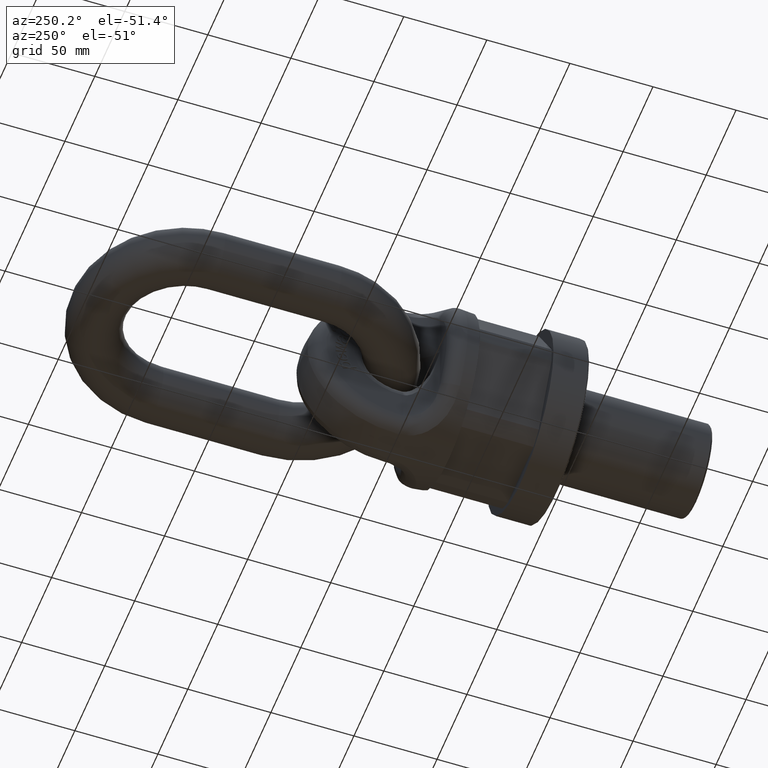
[diagram: clean part render]
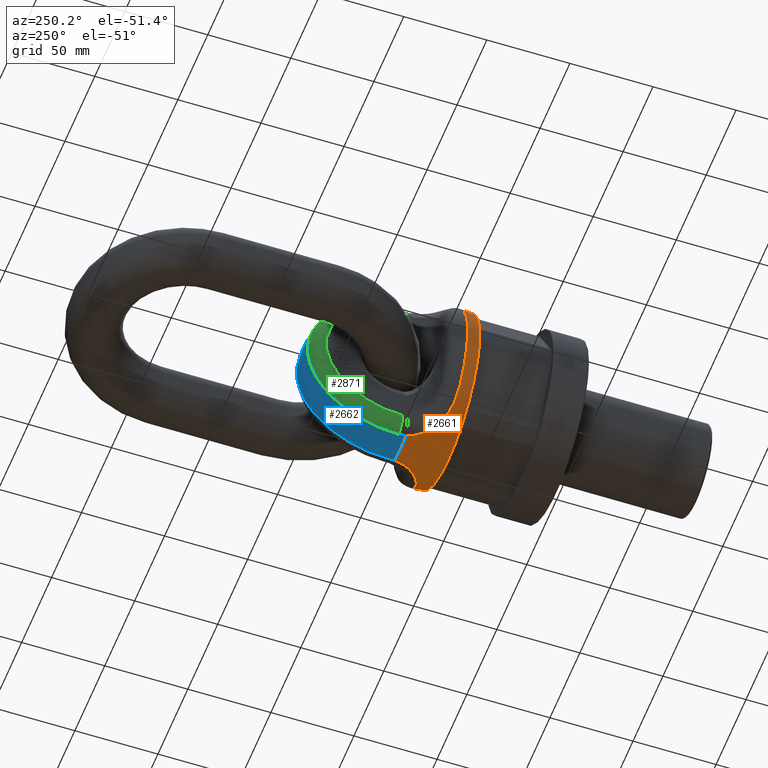
[diagram: same view with three faces highlighted in distinct colors, each labeled with its STEP entity id]
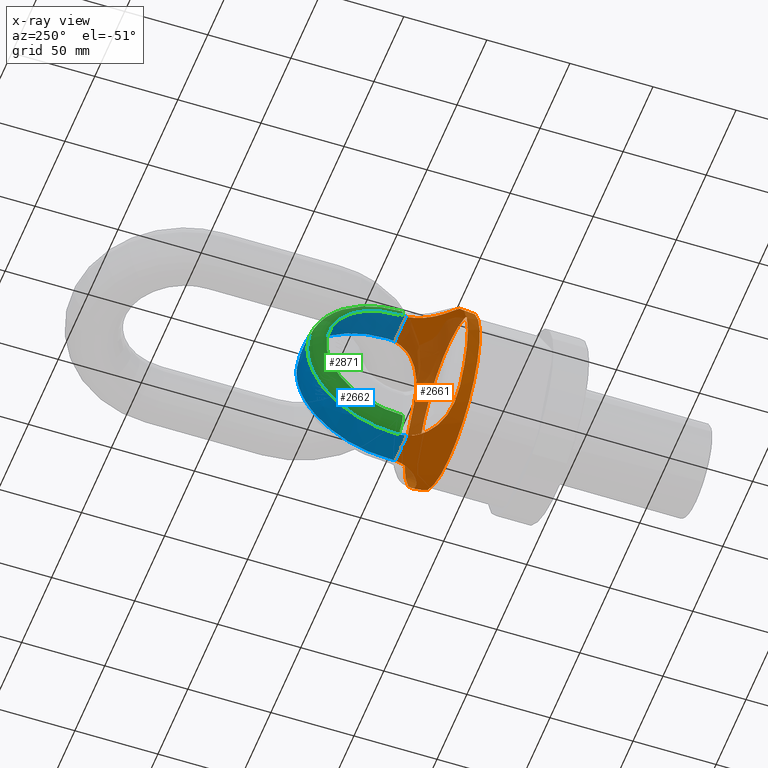
[diagram: x-ray of the same camera — body ghosted, the three highlighted faces saturated]
A machine part, auxiliary view with three faces highlighted in distinct colors.
The next image is the same camera in x-ray (body ghosted, the three faces saturated) — at least one of them is partly hidden behind the body in this view.
Their STEP definitions:

[orange] entity #2661 — the highlighted conical surface has half-angle 5.253 deg.
#349=B_SPLINE_CURVE_WITH_KNOTS('',3,(#7020,#7021,#7022,#7023,#7024,#7025,
#7026,#7027,#7028,#7029,#7030,#7031),.UNSPECIFIED.,.F.,.F.,(4,2,2,2,2,4),
(0.,0.25,0.5,0.75,0.875,1.),.UNSPECIFIED.);
#350=B_SPLINE_CURVE_WITH_KNOTS('',3,(#7036,#7037,#7038,#7039,#7040,#7041,
#7042,#7043,#7044,#7045),.UNSPECIFIED.,.F.,.F.,(4,2,2,2,4),(0.,0.25,0.5,
0.75,1.),.UNSPECIFIED.);
#351=B_SPLINE_CURVE_WITH_KNOTS('',3,(#7049,#7050,#7051,#7052,#7053,#7054,
#7055,#7056,#7057,#7058,#7059,#7060),.UNSPECIFIED.,.F.,.F.,(4,2,2,2,2,4),
(0.,0.25,0.5,0.75,0.875,1.),.UNSPECIFIED.);
#352=B_SPLINE_CURVE_WITH_KNOTS('',3,(#7064,#7065,#7066,#7067,#7068,#7069,
#7070,#7071,#7072,#7073),.UNSPECIFIED.,.F.,.F.,(4,2,2,2,4),(0.,0.25,0.5,
0.75,1.),.UNSPECIFIED.);
#1787=CONICAL_SURFACE('',#5649,52.1058617943637,5.2532915017207);
#2661=ADVANCED_FACE('',(#3008,#3009),#1787,.T.);
#3008=FACE_BOUND('',#3096,.T.);
#3009=FACE_BOUND('',#3097,.T.);
#3096=EDGE_LOOP('',(#3513));
#3097=EDGE_LOOP('',(#3514,#3515,#3516,#3517,#3518,#3519,#3520,#3521));
#3513=ORIENTED_EDGE('',*,*,#5058,.F.);
#3514=ORIENTED_EDGE('',*,*,#5059,.T.);
#3515=ORIENTED_EDGE('',*,*,#5060,.T.);
#3516=ORIENTED_EDGE('',*,*,#5061,.T.);
#3517=ORIENTED_EDGE('',*,*,#5062,.T.);
#3518=ORIENTED_EDGE('',*,*,#5063,.T.);
#3519=ORIENTED_EDGE('',*,*,#5064,.T.);
#3520=ORIENTED_EDGE('',*,*,#5065,.T.);
#3521=ORIENTED_EDGE('',*,*,#5066,.T.);
#4645=VERTEX_POINT('',#7019);
#4646=VERTEX_POINT('',#7032);
#4647=VERTEX_POINT('',#7033);
#4648=VERTEX_POINT('',#7035);
#4649=VERTEX_POINT('',#7046);
#4650=VERTEX_POINT('',#7048);
#4651=VERTEX_POINT('',#7061);
#4652=VERTEX_POINT('',#7063);
#4653=VERTEX_POINT('',#7074);
#5058=EDGE_CURVE('',#4645,#4645,#5553,.T.);
#5059=EDGE_CURVE('',#4646,#4647,#349,.T.);
#5060=EDGE_CURVE('',#4647,#4648,#5554,.T.);
#5061=EDGE_CURVE('',#4648,#4649,#350,.T.);
#5062=EDGE_CURVE('',#4649,#4650,#5555,.T.);
#5063=EDGE_CURVE('',#4650,#4651,#351,.T.);
#5064=EDGE_CURVE('',#4651,#4652,#5556,.T.);
#5065=EDGE_CURVE('',#4652,#4653,#352,.T.);
#5066=EDGE_CURVE('',#4653,#4646,#5557,.T.);
#5553=CIRCLE('',#5644,52.1058617943637);
#5554=CIRCLE('',#5645,54.7689818163599);
#5555=CIRCLE('',#5646,52.7907474358159);
#5556=CIRCLE('',#5647,54.7689818163599);
#5557=CIRCLE('',#5648,52.7907474358159);
#5644=AXIS2_PLACEMENT_3D('',#7018,#5959,#5960);
#5645=AXIS2_PLACEMENT_3D('',#7034,#5961,#5962);
#5646=AXIS2_PLACEMENT_3D('',#7047,#5963,#5964);
#5647=AXIS2_PLACEMENT_3D('',#7062,#5965,#5966);
#5648=AXIS2_PLACEMENT_3D('',#7075,#5967,#5968);
#5649=AXIS2_PLACEMENT_3D('',#7076,#5969,#5970);
#5959=DIRECTION('',(0.,-1.,0.));
#5960=DIRECTION('',(0.,0.,-1.));
#5961=DIRECTION('',(0.,-1.,0.));
#5962=DIRECTION('',(0.,0.,-1.));
#5963=DIRECTION('',(0.,-1.,0.));
#5964=DIRECTION('',(0.,0.,-1.));
#5965=DIRECTION('',(0.,-1.,0.));
#5966=DIRECTION('',(0.,0.,-1.));
#5967=DIRECTION('',(0.,-1.,0.));
#5968=DIRECTION('',(-2.34291072916505E-15,0.,1.));
#5969=DIRECTION('',(0.,1.,0.));
#5970=DIRECTION('',(0.,-3.85357928967801E-16,1.));
#7018=CARTESIAN_POINT('',(0.,65.,0.));
#7019=CARTESIAN_POINT('',(0.,65.,-52.1058617943637));
#7020=CARTESIAN_POINT('',(-39.52344512261,72.4488602807413,-34.9965755535044));
#7021=CARTESIAN_POINT('',(-37.005756647153,72.4488602807413,-37.8399315311034));
#7022=CARTESIAN_POINT('',(-34.1935916373493,72.7125801672574,-40.4219757461274));
#7023=CARTESIAN_POINT('',(-28.2940706816396,74.1097734282731,-44.9017778400233));
#7024=CARTESIAN_POINT('',(-25.1629883172388,75.2624464472764,-46.8210760471722));
#7025=CARTESIAN_POINT('',(-19.2267276015419,78.7079250023469,-49.8942281519693));
#7026=CARTESIAN_POINT('',(-16.3763660403344,81.0409759726313,-51.0734708220809));
#7027=CARTESIAN_POINT('',(-12.9982566390224,85.3646433570751,-52.4037027822614));
#7028=CARTESIAN_POINT('',(-12.0035120404411,86.971080786363,-52.7846340116064));
#7029=CARTESIAN_POINT('',(-10.4553507422444,90.3303236062721,-53.4276917862727));
#7030=CARTESIAN_POINT('',(-9.88394109416931,92.0984665408945,-53.6966141580966));
#7031=CARTESIAN_POINT('',(-9.54646529306761,93.964264621802,-53.930569898797));
#7032=CARTESIAN_POINT('',(-39.52344512261,72.4488602807413,-34.9965755535044));
#7033=CARTESIAN_POINT('',(-9.54646529306767,93.9642646218021,-53.9305698987969));
#7034=CARTESIAN_POINT('',(0.,93.9642646218021,0.));
#7035=CARTESIAN_POINT('',(9.54646529306783,93.9642646218021,-53.9305698987969));
#7036=CARTESIAN_POINT('',(9.54646529306782,93.9642646218019,-53.9305698987969));
#7037=CARTESIAN_POINT('',(10.2215715076205,90.2318136566987,-53.4625512320911));
#7038=CARTESIAN_POINT('',(11.8752128018626,86.7947747479395,-52.8461870570574));
#7039=CARTESIAN_POINT('',(16.4114244867927,81.0034264033429,-51.05941132954));
#7040=CARTESIAN_POINT('',(19.2284416047267,78.7012720395915,-49.8957504268851));
#7041=CARTESIAN_POINT('',(25.2375917917682,75.2248761672735,-46.7800140701433));
#7042=CARTESIAN_POINT('',(28.3252540747575,74.0985357389962,-44.8822813849155));
#7043=CARTESIAN_POINT('',(34.2474254838459,72.7037388002105,-40.3768538930967));
#7044=CARTESIAN_POINT('',(37.0068475720059,72.4488602807413,-37.8386994931719));
#7045=CARTESIAN_POINT('',(39.52344512261,72.4488602807412,-34.9965755535044));
#7046=CARTESIAN_POINT('',(39.52344512261,72.4488602807413,-34.9965755535044));
#7047=CARTESIAN_POINT('',(0.,72.4488602807412,0.));
#7048=CARTESIAN_POINT('',(39.52344512261,72.4488602807413,34.9965755535044));
#7049=CARTESIAN_POINT('',(39.52344512261,72.4488602807413,34.9965755535044));
#7050=CARTESIAN_POINT('',(37.0057566471531,72.4488602807413,37.8399315311033));
#7051=CARTESIAN_POINT('',(34.1935916373494,72.7125801672574,40.4219757461274));
#7052=CARTESIAN_POINT('',(28.2940706816398,74.1097734282732,44.9017778400232));
#7053=CARTESIAN_POINT('',(25.1629883172389,75.2624464472764,46.8210760471722));
#7054=CARTESIAN_POINT('',(19.226727601542,78.7079250023469,49.8942281519693));
#7055=CARTESIAN_POINT('',(16.3763660403345,81.0409759726313,51.0734708220809));
#7056=CARTESIAN_POINT('',(12.9982566390225,85.3646433570751,52.4037027822614));
#7057=CARTESIAN_POINT('',(12.0035120404412,86.971080786363,52.7846340116064));
#7058=CARTESIAN_POINT('',(10.4553507422445,90.3303236062721,53.4276917862727));
#7059=CARTESIAN_POINT('',(9.88394109416943,92.0984665408945,53.6966141580966));
#7060=CARTESIAN_POINT('',(9.54646529306773,93.964264621802,53.930569898797));
#7061=CARTESIAN_POINT('',(9.5464652930678,93.9642646218021,53.9305698987969));
#7062=CARTESIAN_POINT('',(0.,93.9642646218021,0.));
#7063=CARTESIAN_POINT('',(-9.54646529306795,93.9642646218021,53.9305698987969));
#7064=CARTESIAN_POINT('',(-9.54646529306795,93.9642646218019,53.9305698987968));
#7065=CARTESIAN_POINT('',(-10.2215715076206,90.2318136566987,53.462551232091));
#7066=CARTESIAN_POINT('',(-11.8752128018628,86.7947747479395,52.8461870570573));
#7067=CARTESIAN_POINT('',(-16.4114244867928,81.0034264033429,51.0594113295399));
#7068=CARTESIAN_POINT('',(-19.2284416047268,78.7012720395915,49.8957504268851));
#7069=CARTESIAN_POINT('',(-25.2375917917683,75.2248761672735,46.7800140701432));
#7070=CARTESIAN_POINT('',(-28.3252540747576,74.0985357389962,44.8822813849155));
#7071=CARTESIAN_POINT('',(-34.247425483846,72.7037388002105,40.3768538930966));
#7072=CARTESIAN_POINT('',(-37.0068475720059,72.4488602807412,37.8386994931718));
#7073=CARTESIAN_POINT('',(-39.5234451226101,72.4488602807412,34.9965755535043));
#7074=CARTESIAN_POINT('',(-39.5234451226101,72.4488602807413,34.9965755535043));
#7075=CARTESIAN_POINT('',(0.,72.4488602807412,0.));
#7076=CARTESIAN_POINT('',(0.,65.,0.));

[blue] entity #2662 — the highlighted spherical surface has radius 55 mm.
#307=SPHERICAL_SURFACE('',#5652,55.);
#353=B_SPLINE_CURVE_WITH_KNOTS('',3,(#7077,#7078,#7079,#7080),
 .UNSPECIFIED.,.F.,.F.,(4,4),(0.,1.),.UNSPECIFIED.);
#354=B_SPLINE_CURVE_WITH_KNOTS('',3,(#7084,#7085,#7086,#7087),
 .UNSPECIFIED.,.F.,.F.,(4,4),(0.,1.),.UNSPECIFIED.);
#355=B_SPLINE_CURVE_WITH_KNOTS('',3,(#7088,#7089,#7090,#7091),
 .UNSPECIFIED.,.F.,.F.,(4,4),(0.,1.),.UNSPECIFIED.);
#356=B_SPLINE_CURVE_WITH_KNOTS('',3,(#7095,#7096,#7097,#7098),
 .UNSPECIFIED.,.F.,.F.,(4,4),(0.,1.),.UNSPECIFIED.);
#1814=FACE_OUTER_BOUND('',#3098,.T.);
#2662=ADVANCED_FACE('',(#1814),#307,.T.);
#3098=EDGE_LOOP('',(#3522,#3523,#3524,#3525,#3526,#3527,#3528,#3529));
#3522=ORIENTED_EDGE('',*,*,#5060,.F.);
#3523=ORIENTED_EDGE('',*,*,#5067,.T.);
#3524=ORIENTED_EDGE('',*,*,#5068,.T.);
#3525=ORIENTED_EDGE('',*,*,#5069,.T.);
#3526=ORIENTED_EDGE('',*,*,#5064,.F.);
#3527=ORIENTED_EDGE('',*,*,#5070,.T.);
#3528=ORIENTED_EDGE('',*,*,#5071,.T.);
#3529=ORIENTED_EDGE('',*,*,#5072,.T.);
#4647=VERTEX_POINT('',#7033);
#4648=VERTEX_POINT('',#7035);
#4651=VERTEX_POINT('',#7061);
#4652=VERTEX_POINT('',#7063);
#4654=VERTEX_POINT('',#7081);
#4655=VERTEX_POINT('',#7083);
#4656=VERTEX_POINT('',#7092);
#4657=VERTEX_POINT('',#7094);
#5060=EDGE_CURVE('',#4647,#4648,#5554,.T.);
#5064=EDGE_CURVE('',#4651,#4652,#5556,.T.);
#5067=EDGE_CURVE('',#4647,#4654,#353,.T.);
#5068=EDGE_CURVE('',#4654,#4655,#5558,.T.);
#5069=EDGE_CURVE('',#4655,#4652,#354,.T.);
#5070=EDGE_CURVE('',#4651,#4656,#355,.T.);
#5071=EDGE_CURVE('',#4656,#4657,#5559,.T.);
#5072=EDGE_CURVE('',#4657,#4648,#356,.T.);
#5554=CIRCLE('',#5645,54.7689818163599);
#5556=CIRCLE('',#5647,54.7689818163599);
#5558=CIRCLE('',#5650,54.2223326559818);
#5559=CIRCLE('',#5651,54.2223326559818);
#5645=AXIS2_PLACEMENT_3D('',#7034,#5961,#5962);
#5647=AXIS2_PLACEMENT_3D('',#7062,#5965,#5966);
#5650=AXIS2_PLACEMENT_3D('',#7082,#5971,#5972);
#5651=AXIS2_PLACEMENT_3D('',#7093,#5973,#5974);
#5652=AXIS2_PLACEMENT_3D('',#7099,#5975,#5976);
#5961=DIRECTION('',(0.,-1.,0.));
#5962=DIRECTION('',(0.,0.,-1.));
#5965=DIRECTION('',(0.,-1.,0.));
#5966=DIRECTION('',(0.,0.,-1.));
#5971=DIRECTION('',(1.,3.37307342551046E-16,2.34291072916505E-15));
#5972=DIRECTION('',(3.51920644152511E-16,-1.,7.95628454939125E-31));
#5973=DIRECTION('',(-1.,3.37307342551046E-16,0.));
#5974=DIRECTION('',(-3.51920644152511E-16,-1.,0.));
#5975=DIRECTION('',(6.12323399573677E-17,-1.,0.));
#5976=DIRECTION('',(1.,0.,0.));
#7033=CARTESIAN_POINT('',(-9.54646529306767,93.9642646218021,-53.9305698987969));
#7034=CARTESIAN_POINT('',(0.,93.9642646218021,0.));
#7035=CARTESIAN_POINT('',(9.54646529306783,93.9642646218021,-53.9305698987969));
#7061=CARTESIAN_POINT('',(9.5464652930678,93.9642646218021,53.9305698987969));
#7062=CARTESIAN_POINT('',(0.,93.9642646218021,0.));
#7063=CARTESIAN_POINT('',(-9.54646529306795,93.9642646218021,53.9305698987969));
#7077=CARTESIAN_POINT('',(-9.54646529306767,93.9642646218021,-53.9305698987969));
#7078=CARTESIAN_POINT('',(-9.32706459293991,95.431341256225,-54.1063943133605));
#7079=CARTESIAN_POINT('',(-9.21621621621609,96.9116562002808,-54.2026912049826));
#7080=CARTESIAN_POINT('',(-9.21621621621609,98.4054054054054,-54.2190724369574));
#7081=CARTESIAN_POINT('',(-9.21621621621608,98.4054054054054,-54.2190724369574));
#7082=CARTESIAN_POINT('',(-9.21621621621621,99.,-2.15927718552779E-14));
#7083=CARTESIAN_POINT('',(-9.21621621621633,98.4054054054054,54.2190724369574));
#7084=CARTESIAN_POINT('',(-9.21621621621634,98.4054054054054,54.2190724369574));
#7085=CARTESIAN_POINT('',(-9.21621621621634,96.9116562002807,54.2026912049826));
#7086=CARTESIAN_POINT('',(-9.32706459294018,95.4313412562248,54.1063943133604));
#7087=CARTESIAN_POINT('',(-9.54646529306794,93.9642646218019,53.9305698987968));
#7088=CARTESIAN_POINT('',(9.5464652930678,93.9642646218021,53.9305698987969));
#7089=CARTESIAN_POINT('',(9.32706459294004,95.431341256225,54.1063943133605));
#7090=CARTESIAN_POINT('',(9.21621621621622,96.9116562002808,54.2026912049826));
#7091=CARTESIAN_POINT('',(9.21621621621622,98.4054054054054,54.2190724369574));
#7092=CARTESIAN_POINT('',(9.21621621621621,98.4054054054054,54.2190724369574));
#7093=CARTESIAN_POINT('',(9.21621621621621,99.,0.));
#7094=CARTESIAN_POINT('',(9.21621621621621,98.4054054054054,-54.2190724369574));
#7095=CARTESIAN_POINT('',(9.21621621621622,98.4054054054054,-54.2190724369574));
#7096=CARTESIAN_POINT('',(9.21621621621622,96.9116562002807,-54.2026912049826));
#7097=CARTESIAN_POINT('',(9.32706459294005,95.4313412562248,-54.1063943133604));
#7098=CARTESIAN_POINT('',(9.54646529306782,93.9642646218019,-53.9305698987969));
#7099=CARTESIAN_POINT('',(0.,99.,0.));

[green] entity #2871 — the highlighted toroidal blend (fillet) surface has major radius 45.5961 mm and minor (blend) radius 8.75 mm.
#1794=TOROIDAL_SURFACE('',#5789,45.596052460712,8.75);
#2007=FACE_OUTER_BOUND('',#3330,.T.);
#2871=ADVANCED_FACE('',(#2007),#1794,.T.);
#3330=EDGE_LOOP('',(#4509,#4510,#4511,#4512));
#4509=ORIENTED_EDGE('',*,*,#5520,.T.);
#4510=ORIENTED_EDGE('',*,*,#5068,.F.);
#4511=ORIENTED_EDGE('',*,*,#5522,.F.);
#4512=ORIENTED_EDGE('',*,*,#5288,.F.);
#4654=VERTEX_POINT('',#7081);
#4655=VERTEX_POINT('',#7083);
#4781=VERTEX_POINT('',#8431);
#4784=VERTEX_POINT('',#8436);
#5068=EDGE_CURVE('',#4654,#4655,#5558,.T.);
#5288=EDGE_CURVE('',#4784,#4781,#5578,.T.);
#5520=EDGE_CURVE('',#4784,#4655,#5586,.T.);
#5522=EDGE_CURVE('',#4781,#4654,#5588,.T.);
#5558=CIRCLE('',#5650,54.2223326559818);
#5578=CIRCLE('',#5725,45.596052460712);
#5586=CIRCLE('',#5786,8.75);
#5588=CIRCLE('',#5788,8.75);
#5650=AXIS2_PLACEMENT_3D('',#7082,#5971,#5972);
#5725=AXIS2_PLACEMENT_3D('',#8437,#6255,#6256);
#5786=AXIS2_PLACEMENT_3D('',#9674,#6531,#6532);
#5788=AXIS2_PLACEMENT_3D('',#9724,#6535,#6536);
#5789=AXIS2_PLACEMENT_3D('',#9725,#6537,#6538);
#5971=DIRECTION('',(1.,3.37307342551046E-16,2.34291072916505E-15));
#5972=DIRECTION('',(3.51920644152511E-16,-1.,7.95628454939125E-31));
#6255=DIRECTION('',(-1.,-3.37307342551046E-16,-2.34291072916505E-15));
#6256=DIRECTION('',(-3.04363800348118E-16,1.,-8.10988077621348E-31));
#6531=DIRECTION('',(-2.56920347565608E-17,0.999939873132255,0.0109658615826633));
#6532=DIRECTION('',(2.37904933848248E-15,0.0109658615826632,-0.999939873132255));
#6535=DIRECTION('',(-2.56920347565608E-17,-0.999939873132255,0.0109658615826633));
#6536=DIRECTION('',(-2.37904933848248E-15,0.0109658615826632,0.999939873132255));
#6537=DIRECTION('',(-1.,-3.37307342551046E-16,-2.34291072916505E-15));
#6538=DIRECTION('',(-3.35159513396566E-16,1.,-7.93817191882733E-31));
#7081=CARTESIAN_POINT('',(-9.21621621621608,98.4054054054054,-54.2190724369574));
#7082=CARTESIAN_POINT('',(-9.21621621621621,99.,-2.15927718552779E-14));
#7083=CARTESIAN_POINT('',(-9.21621621621633,98.4054054054054,54.2190724369574));
#8431=CARTESIAN_POINT('',(-16.4999999999999,98.5,-45.593310912896));
#8436=CARTESIAN_POINT('',(-16.5000000000001,98.5,45.5933109128959));
#8437=CARTESIAN_POINT('',(-16.5,99.,-3.86580270312233E-14));
#9674=CARTESIAN_POINT('',(-7.75000000000011,98.5,45.5933109128959));
#9724=CARTESIAN_POINT('',(-7.74999999999989,98.5,-45.593310912896));
#9725=CARTESIAN_POINT('',(-7.74999999999999,99.,-1.81575581510291E-14));